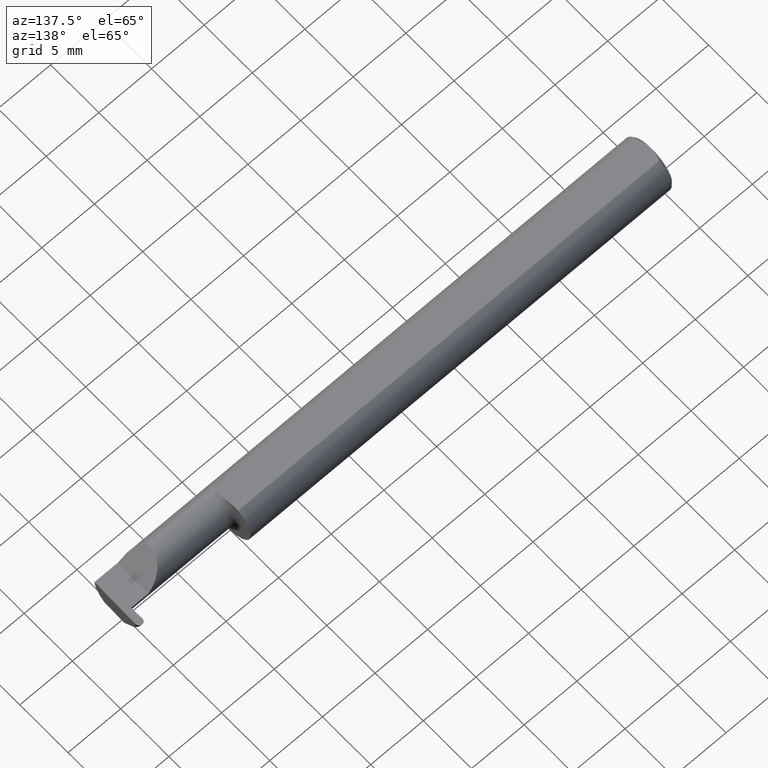
[diagram: clean part render]
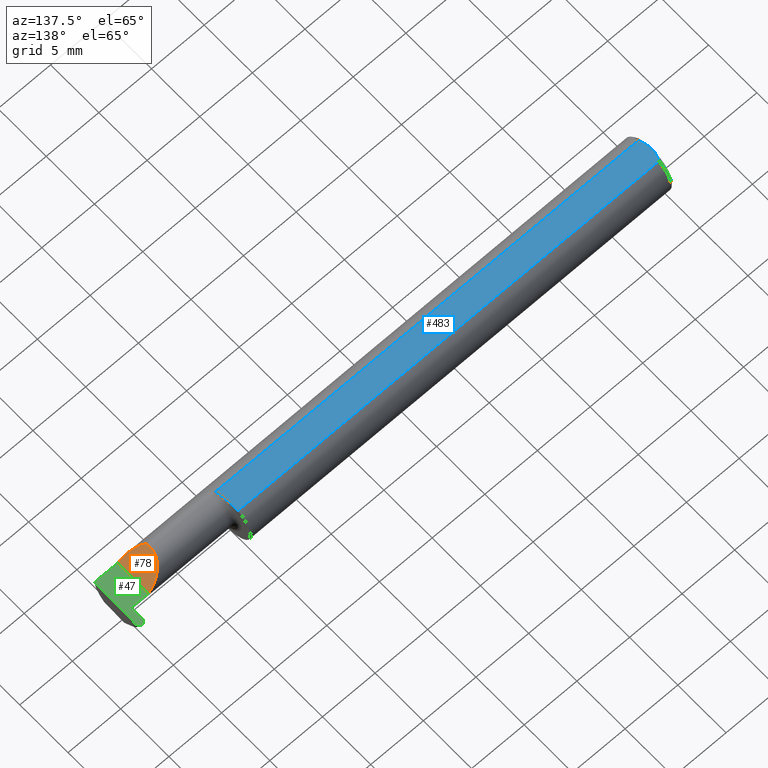
[diagram: same view with three faces highlighted in distinct colors, each labeled with its STEP entity id]
A machine part, auxiliary view with three faces highlighted in distinct colors.
Their STEP definitions:

[orange] entity #78 — the highlighted planar face has unit normal (-0.7071, 0, -0.7071).
#32 = CARTESIAN_POINT ( 'NONE',  ( 1.854690286057536941, -0.08092595952420821026, 0.05530971394246249340 ) ) ;
#34 = CARTESIAN_POINT ( 'NONE',  ( 1.834999999999999520, -0.04781600192481531841, 0.07500000000000003886 ) ) ;
#38 = CARTESIAN_POINT ( 'NONE',  ( 1.834999999999999298, 0.001333982822017845335, 0.07500000000000003886 ) ) ;
#45 = VERTEX_POINT ( 'NONE', #190 ) ;
#69 = CARTESIAN_POINT ( 'NONE',  ( 1.910000000000000142, -0.2500000000000000555, 1.102182119232621301E-17 ) ) ;
#78 = ADVANCED_FACE ( 'NONE', ( #682 ), #83, .F. ) ;
#83 = PLANE ( 'NONE',  #625 ) ;
#111 = ORIENTED_EDGE ( 'NONE', *, *, #291, .F. ) ;
#114 = CARTESIAN_POINT ( 'NONE',  ( 1.910000000000000142, 0.03239999999999999131, 5.082284216461538453E-17 ) ) ;
#168 = CARTESIAN_POINT ( 'NONE',  ( 1.880893035518782730, -0.09359999999999997489, 0.02910696448121682239 ) ) ;
#186 = EDGE_CURVE ( 'NONE', #45, #338, #660, .T. ) ;
#187 = CARTESIAN_POINT ( 'NONE',  ( 1.910000000000000142, 0.03239999999999999131, 5.082284216461538453E-17 ) ) ;
#190 = CARTESIAN_POINT ( 'NONE',  ( 1.836620632051321200, -0.05810704225352102820, 0.07337936794867834511 ) ) ;
#220 = CARTESIAN_POINT ( 'NONE',  ( 1.834999999999999520, -0.04260000000000003367, 0.07500000000000003886 ) ) ;
#222 = ORIENTED_EDGE ( 'NONE', *, *, #487, .T. ) ;
#256 = DIRECTION ( 'NONE',  ( -0.7071067811865442421, 0.000000000000000000, -0.7071067811865509034 ) ) ;
#267 = EDGE_LOOP ( 'NONE', ( #475, #111, #222, #277 ) ) ;
#277 = ORIENTED_EDGE ( 'NONE', *, *, #368, .F. ) ;
#281 = CARTESIAN_POINT ( 'NONE',  ( 1.910000000000000142, -0.09360000000000005815, 1.102182119232621301E-17 ) ) ;
#291 = EDGE_CURVE ( 'NONE', #569, #45, #334, .T. ) ;
#318 = CARTESIAN_POINT ( 'NONE',  ( 1.910000000000000142, -0.09360000000000005815, 1.102182119232621301E-17 ) ) ;
#321 = DIRECTION ( 'NONE',  ( -0.7071067811865507924, 0.000000000000000000, 0.7071067811865441310 ) ) ;
#334 =( BOUNDED_CURVE ( )  B_SPLINE_CURVE ( 3, ( #281, #168, #32, #396 ),
 .UNSPECIFIED., .F., .F. ) 
 B_SPLINE_CURVE_WITH_KNOTS ( ( 4, 4 ),
 ( 4.712388980384689674, 5.613420356061720184 ),
 .UNSPECIFIED. ) 
 CURVE ( )  GEOMETRIC_REPRESENTATION_ITEM ( )  RATIONAL_B_SPLINE_CURVE ( ( 1.000000000000000000, 0.9334817841311873199, 0.9334817841311873199, 1.000000000000000000 ) ) 
 REPRESENTATION_ITEM ( '' )  );
#338 = VERTEX_POINT ( 'NONE', #519 ) ;
#368 = EDGE_CURVE ( 'NONE', #338, #726, #636, .T. ) ;
#394 = CARTESIAN_POINT ( 'NONE',  ( 1.835542168554753717, -0.05300374992736060081, 0.07445783144524575903 ) ) ;
#396 = CARTESIAN_POINT ( 'NONE',  ( 1.836620632051321200, -0.05810704225352102820, 0.07337936794867834511 ) ) ;
#409 = CARTESIAN_POINT ( 'NONE',  ( 1.834999999999999520, -0.04260000000000003367, 0.07500000000000003886 ) ) ;
#445 = CARTESIAN_POINT ( 'NONE',  ( 1.836620632051321200, -0.05810704225352102820, 0.07337936794867834511 ) ) ;
#475 = ORIENTED_EDGE ( 'NONE', *, *, #186, .F. ) ;
#482 = LINE ( 'NONE', #69, #690 ) ;
#487 = EDGE_CURVE ( 'NONE', #569, #726, #482, .T. ) ;
#519 = CARTESIAN_POINT ( 'NONE',  ( 1.834999999999999520, -0.04260000000000003367, 0.07500000000000003886 ) ) ;
#569 = VERTEX_POINT ( 'NONE', #318 ) ;
#625 = AXIS2_PLACEMENT_3D ( 'NONE', #678, #256, #321 ) ;
#636 =( BOUNDED_CURVE ( )  B_SPLINE_CURVE ( 3, ( #409, #38, #659, #114 ),
 .UNSPECIFIED., .F., .F. ) 
 B_SPLINE_CURVE_WITH_KNOTS ( ( 4, 4 ),
 ( 0.000000000000000000, 1.570796326794896336 ),
 .UNSPECIFIED. ) 
 CURVE ( )  GEOMETRIC_REPRESENTATION_ITEM ( )  RATIONAL_B_SPLINE_CURVE ( ( 1.000000000000000000, 0.8047378541243650485, 0.8047378541243650485, 1.000000000000000000 ) ) 
 REPRESENTATION_ITEM ( '' )  );
#659 = CARTESIAN_POINT ( 'NONE',  ( 1.866066017177981706, 0.03239999999999999131, 0.04393398282201791544 ) ) ;
#660 =( BOUNDED_CURVE ( )  B_SPLINE_CURVE ( 3, ( #445, #394, #34, #220 ),
 .UNSPECIFIED., .F., .F. ) 
 B_SPLINE_CURVE_WITH_KNOTS ( ( 4, 4 ),
 ( 6.074922494366330916, 6.283185307179586232 ),
 .UNSPECIFIED. ) 
 CURVE ( )  GEOMETRIC_REPRESENTATION_ITEM ( )  RATIONAL_B_SPLINE_CURVE ( ( 1.000000000000000000, 0.9963888149483995926, 0.9963888149483995926, 1.000000000000000000 ) ) 
 REPRESENTATION_ITEM ( '' )  );
#678 = CARTESIAN_POINT ( 'NONE',  ( 1.910000000000000142, -0.2500000000000000555, 1.102182119232621301E-17 ) ) ;
#682 = FACE_OUTER_BOUND ( 'NONE', #267, .T. ) ;
#690 = VECTOR ( 'NONE', #803, 39.37007874015748143 ) ;
#726 = VERTEX_POINT ( 'NONE', #187 ) ;
#803 = DIRECTION ( 'NONE',  ( -0.000000000000000000, 1.000000000000000000, -0.000000000000000000 ) ) ;

[blue] entity #483 — the highlighted planar face has unit normal (0, 0, 1).
#33 = VECTOR ( 'NONE', #232, 39.37007874015748143 ) ;
#82 = B_SPLINE_CURVE_WITH_KNOTS ( 'NONE', 3,
 ( #109, #274, #385, #225, #166, #344 ),
 .UNSPECIFIED., .F., .F.,
 ( 4, 2, 4 ),
 ( 0.001744210492668864416, 0.002295110172257193264, 0.002846009851845522111 ),
 .UNSPECIFIED. ) ;
#93 = CARTESIAN_POINT ( 'NONE',  ( 1.586463898467976863, -0.005727447913487319735, 0.08359999999999991049 ) ) ;
#96 = B_SPLINE_CURVE_WITH_KNOTS ( 'NONE', 3,
 ( #378, #628, #523, #93, #157, #506 ),
 .UNSPECIFIED., .F., .F.,
 ( 4, 2, 4 ),
 ( 0.009672910729349542408, 0.01035804079918431486, 0.01104317086901908732 ),
 .UNSPECIFIED. ) ;
#97 = EDGE_LOOP ( 'NONE', ( #645, #336, #188, #218, #774, #522 ) ) ;
#108 = VERTEX_POINT ( 'NONE', #263 ) ;
#109 = CARTESIAN_POINT ( 'NONE',  ( 0.000000000000000000, 0.000000000000000000, 0.08359999999999991049 ) ) ;
#118 = EDGE_CURVE ( 'NONE', #611, #540, #96, .T. ) ;
#119 = DIRECTION ( 'NONE',  ( 1.000000000000000000, 0.000000000000000000, 0.000000000000000000 ) ) ;
#157 = CARTESIAN_POINT ( 'NONE',  ( 1.585000000000000187, 0.003280657920457245337, 0.08359999999999991049 ) ) ;
#166 = CARTESIAN_POINT ( 'NONE',  ( 0.007036739039485840133, 0.03550621559607060329, 0.08359999999999991049 ) ) ;
#178 = CARTESIAN_POINT ( 'NONE',  ( 0.000000000000000000, 0.04209513035969864037, 0.08359999999999988274 ) ) ;
#188 = ORIENTED_EDGE ( 'NONE', *, *, #782, .T. ) ;
#218 = ORIENTED_EDGE ( 'NONE', *, *, #807, .T. ) ;
#225 = CARTESIAN_POINT ( 'NONE',  ( 0.004492168231814808177, 0.02859366993844194779, 0.08359999999999991049 ) ) ;
#232 = DIRECTION ( 'NONE',  ( 0.000000000000000000, 1.000000000000000000, 0.000000000000000000 ) ) ;
#242 = DIRECTION ( 'NONE',  ( 0.000000000000000000, 0.000000000000000000, 1.000000000000000000 ) ) ;
#243 = EDGE_CURVE ( 'NONE', #280, #633, #82, .T. ) ;
#263 = CARTESIAN_POINT ( 'NONE',  ( 0.01000000000000016674, -0.04209513035969864037, 0.08359999999999988274 ) ) ;
#274 = CARTESIAN_POINT ( 'NONE',  ( 2.476070721796526867E-17, 0.007317304829308955878, 0.08359999999999991049 ) ) ;
#280 = VERTEX_POINT ( 'NONE', #286 ) ;
#286 = CARTESIAN_POINT ( 'NONE',  ( 0.000000000000000000, 0.000000000000000000, 0.08359999999999991049 ) ) ;
#292 = CARTESIAN_POINT ( 'NONE',  ( 0.000000000000000000, -0.04209513035969864037, 0.08359999999999988274 ) ) ;
#293 = VERTEX_POINT ( 'NONE', #406 ) ;
#315 = PLANE ( 'NONE',  #520 ) ;
#336 = ORIENTED_EDGE ( 'NONE', *, *, #118, .T. ) ;
#344 = CARTESIAN_POINT ( 'NONE',  ( 0.01000000000000016674, 0.04209513035969864037, 0.08359999999999988274 ) ) ;
#349 = LINE ( 'NONE', #178, #593 ) ;
#354 = B_SPLINE_CURVE_WITH_KNOTS ( 'NONE', 3,
 ( #486, #416, #797, #735 ),
 .UNSPECIFIED., .F., .F.,
 ( 4, 4 ),
 ( 0.0006429768761302093617, 0.001744210492668864416 ),
 .UNSPECIFIED. ) ;
#355 = DIRECTION ( 'NONE',  ( -1.000000000000000000, -0.000000000000000000, -0.000000000000000000 ) ) ;
#378 = CARTESIAN_POINT ( 'NONE',  ( 1.591129652885479473, -0.04209513035970116612, 0.08359999999999991049 ) ) ;
#385 = CARTESIAN_POINT ( 'NONE',  ( 0.0009807498324118613890, 0.01453516766257752398, 0.08359999999999992437 ) ) ;
#406 = CARTESIAN_POINT ( 'NONE',  ( 1.584999999999999964, 0.04209513035969864037, 0.08359999999999988274 ) ) ;
#416 = CARTESIAN_POINT ( 'NONE',  ( 0.004072204388638868758, -0.02891446873729324601, 0.08359999999999991049 ) ) ;
#421 = LINE ( 'NONE', #292, #605 ) ;
#446 = CARTESIAN_POINT ( 'NONE',  ( 0.01000000000000016674, 0.04209513035969864037, 0.08359999999999988274 ) ) ;
#464 = EDGE_CURVE ( 'NONE', #108, #280, #354, .T. ) ;
#483 = ADVANCED_FACE ( 'NONE', ( #545 ), #315, .T. ) ;
#486 = CARTESIAN_POINT ( 'NONE',  ( 0.01000000000000016674, -0.04209513035969864037, 0.08359999999999988274 ) ) ;
#502 = CARTESIAN_POINT ( 'NONE',  ( 1.584999999999999964, 0.01227294415283371881, 0.08359999999999991049 ) ) ;
#506 = CARTESIAN_POINT ( 'NONE',  ( 1.584999999999999964, 0.01227294415283371881, 0.08359999999999991049 ) ) ;
#520 = AXIS2_PLACEMENT_3D ( 'NONE', #615, #242, #622 ) ;
#522 = ORIENTED_EDGE ( 'NONE', *, *, #464, .F. ) ;
#523 = CARTESIAN_POINT ( 'NONE',  ( 1.589570820222980352, -0.02392027542784321698, 0.08359999999999992437 ) ) ;
#540 = VERTEX_POINT ( 'NONE', #502 ) ;
#545 = FACE_OUTER_BOUND ( 'NONE', #97, .T. ) ;
#575 = CARTESIAN_POINT ( 'NONE',  ( 1.591129652885479473, -0.04209513035970116612, 0.08359999999999991049 ) ) ;
#593 = VECTOR ( 'NONE', #355, 39.37007874015748143 ) ;
#605 = VECTOR ( 'NONE', #119, 39.37007874015748143 ) ;
#611 = VERTEX_POINT ( 'NONE', #575 ) ;
#615 = CARTESIAN_POINT ( 'NONE',  ( 2.191425808082400728, 0.09360000000000005815, 0.08359999999999991049 ) ) ;
#622 = DIRECTION ( 'NONE',  ( 1.000000000000000000, 0.000000000000000000, -0.000000000000000000 ) ) ;
#628 = CARTESIAN_POINT ( 'NONE',  ( 1.591082007218903360, -0.03301619840524119831, 0.08359999999999991049 ) ) ;
#633 = VERTEX_POINT ( 'NONE', #446 ) ;
#645 = ORIENTED_EDGE ( 'NONE', *, *, #743, .T. ) ;
#731 = LINE ( 'NONE', #786, #33 ) ;
#735 = CARTESIAN_POINT ( 'NONE',  ( 0.000000000000000000, 0.000000000000000000, 0.08359999999999991049 ) ) ;
#743 = EDGE_CURVE ( 'NONE', #108, #611, #421, .T. ) ;
#774 = ORIENTED_EDGE ( 'NONE', *, *, #243, .F. ) ;
#782 = EDGE_CURVE ( 'NONE', #540, #293, #731, .T. ) ;
#786 = CARTESIAN_POINT ( 'NONE',  ( 1.584999999999999964, 0.09360000000000005815, 0.08359999999999991049 ) ) ;
#797 = CARTESIAN_POINT ( 'NONE',  ( 2.387527623501553705E-17, -0.01462709520273675068, 0.08359999999999991049 ) ) ;
#807 = EDGE_CURVE ( 'NONE', #293, #633, #349, .T. ) ;

[green] entity #47 — the highlighted planar face has unit normal (-0, 0, -1).
#1 = ORIENTED_EDGE ( 'NONE', *, *, #403, .T. ) ;
#2 = CARTESIAN_POINT ( 'NONE',  ( 1.979564206858069220, 0.09040000000000021629, 9.406295376684195230E-19 ) ) ;
#14 = LINE ( 'NONE', #442, #734 ) ;
#47 = ADVANCED_FACE ( 'NONE', ( #555 ), #437, .F. ) ;
#48 = VECTOR ( 'NONE', #259, 39.37007874015748143 ) ;
#49 = LINE ( 'NONE', #183, #557 ) ;
#50 = VERTEX_POINT ( 'NONE', #623 ) ;
#54 = CARTESIAN_POINT ( 'NONE',  ( 1.975260873654413052, 0.03239999999999999825, 0.000000000000000000 ) ) ;
#55 = ORIENTED_EDGE ( 'NONE', *, *, #567, .F. ) ;
#60 = CARTESIAN_POINT ( 'NONE',  ( 1.974486369625657378, 0.07677130609030106967, 0.000000000000000000 ) ) ;
#64 = EDGE_CURVE ( 'NONE', #50, #768, #312, .T. ) ;
#68 = CARTESIAN_POINT ( 'NONE',  ( 1.975260873654413052, 0.03239999999999999825, 0.000000000000000000 ) ) ;
#69 = CARTESIAN_POINT ( 'NONE',  ( 1.910000000000000142, -0.2500000000000000555, 1.102182119232621301E-17 ) ) ;
#71 = ORIENTED_EDGE ( 'NONE', *, *, #487, .F. ) ;
#126 = CARTESIAN_POINT ( 'NONE',  ( 1.999998056073120534, 0.07741385304294044756, 0.000000000000000000 ) ) ;
#131 = CARTESIAN_POINT ( 'NONE',  ( 1.987408188690569011, 0.09039999999999999425, 0.000000000000000000 ) ) ;
#133 = VECTOR ( 'NONE', #671, 39.37007874015747433 ) ;
#159 = CARTESIAN_POINT ( 'NONE',  ( 1.999986840374342822, 0.07677130609030106967, 0.000000000000000000 ) ) ;
#183 = CARTESIAN_POINT ( 'NONE',  ( 2.999519565323742037E-32, -0.09359999999999998876, 2.449293598294716768E-16 ) ) ;
#185 = CARTESIAN_POINT ( 'NONE',  ( 1.987065021309431190, 0.09039999999999999425, 0.000000000000000000 ) ) ;
#187 = CARTESIAN_POINT ( 'NONE',  ( 1.910000000000000142, 0.03239999999999999131, 5.082284216461538453E-17 ) ) ;
#207 = DIRECTION ( 'NONE',  ( 1.000000000000000000, -0.000000000000000000, -0.000000000000000000 ) ) ;
#215 = ORIENTED_EDGE ( 'NONE', *, *, #544, .F. ) ;
#237 = EDGE_LOOP ( 'NONE', ( #55, #548, #510, #384, #215, #71, #591, #424, #1 ) ) ;
#249 = CARTESIAN_POINT ( 'NONE',  ( 1.987065021309431190, 0.09039999999999999425, 0.000000000000000000 ) ) ;
#259 = DIRECTION ( 'NONE',  ( 1.000000000000000000, 7.099522513569547654E-16, -0.000000000000000000 ) ) ;
#260 = CARTESIAN_POINT ( 'NONE',  ( -3.937007874019685528E-05, 0.09039999999999999425, 0.000000000000000000 ) ) ;
#270 = VERTEX_POINT ( 'NONE', #159 ) ;
#305 = LINE ( 'NONE', #126, #133 ) ;
#312 = LINE ( 'NONE', #68, #48 ) ;
#318 = CARTESIAN_POINT ( 'NONE',  ( 1.910000000000000142, -0.09360000000000005815, 1.102182119232621301E-17 ) ) ;
#328 = VECTOR ( 'NONE', #207, 39.37007874015748143 ) ;
#364 = AXIS2_PLACEMENT_3D ( 'NONE', #744, #749, #367 ) ;
#367 = DIRECTION ( 'NONE',  ( -1.000000000000000000, 0.000000000000000000, 1.224646799147358877E-16 ) ) ;
#369 = CARTESIAN_POINT ( 'NONE',  ( 1.999986840374342822, 0.07677130609030106967, 0.000000000000000000 ) ) ;
#383 = DIRECTION ( 'NONE',  ( 1.000000000000000000, 0.000000000000000000, 0.000000000000000000 ) ) ;
#384 = ORIENTED_EDGE ( 'NONE', *, *, #64, .F. ) ;
#403 = EDGE_CURVE ( 'NONE', #270, #763, #725, .T. ) ;
#408 = VERTEX_POINT ( 'NONE', #60 ) ;
#411 = VERTEX_POINT ( 'NONE', #249 ) ;
#413 =( BOUNDED_CURVE ( )  B_SPLINE_CURVE ( 3, ( #185, #2, #429, #680 ),
 .UNSPECIFIED., .F., .F. ) 
 B_SPLINE_CURVE_WITH_KNOTS ( ( 4, 4 ),
 ( 6.177091236413978947, 7.752341154236730425 ),
 .UNSPECIFIED. ) 
 CURVE ( )  GEOMETRIC_REPRESENTATION_ITEM ( )  RATIONAL_B_SPLINE_CURVE ( ( 1.000000000000000000, 0.8036869647627007396, 0.8036869647627007396, 1.000000000000000000 ) ) 
 REPRESENTATION_ITEM ( '' )  );
#424 = ORIENTED_EDGE ( 'NONE', *, *, #474, .F. ) ;
#425 = CARTESIAN_POINT ( 'NONE',  ( 2.000126064110226753, 0.08474742857719365363, -1.579535239246384574E-18 ) ) ;
#429 = CARTESIAN_POINT ( 'NONE',  ( 1.974347145889773225, 0.08474742857719380629, 1.579535239246386693E-18 ) ) ;
#437 = PLANE ( 'NONE',  #364 ) ;
#442 = CARTESIAN_POINT ( 'NONE',  ( 1.584999999999999964, 0.03239999999999999131, 5.082284216461538453E-17 ) ) ;
#471 = LINE ( 'NONE', #724, #655 ) ;
#474 = EDGE_CURVE ( 'NONE', #270, #585, #305, .T. ) ;
#482 = LINE ( 'NONE', #69, #690 ) ;
#487 = EDGE_CURVE ( 'NONE', #569, #726, #482, .T. ) ;
#496 = CARTESIAN_POINT ( 'NONE',  ( 1.997012998164632958, -0.09360000000000001652, 0.000000000000000000 ) ) ;
#498 = LINE ( 'NONE', #260, #328 ) ;
#503 = EDGE_CURVE ( 'NONE', #411, #408, #413, .T. ) ;
#510 = ORIENTED_EDGE ( 'NONE', *, *, #790, .F. ) ;
#542 = DIRECTION ( 'NONE',  ( -1.000000000000000000, -0.000000000000000000, -0.000000000000000000 ) ) ;
#544 = EDGE_CURVE ( 'NONE', #726, #50, #14, .T. ) ;
#548 = ORIENTED_EDGE ( 'NONE', *, *, #503, .T. ) ;
#549 = CARTESIAN_POINT ( 'NONE',  ( 1.987408188690569011, 0.09039999999999999425, 0.000000000000000000 ) ) ;
#555 = FACE_OUTER_BOUND ( 'NONE', #237, .T. ) ;
#557 = VECTOR ( 'NONE', #542, 39.37007874015748143 ) ;
#567 = EDGE_CURVE ( 'NONE', #411, #763, #498, .T. ) ;
#569 = VERTEX_POINT ( 'NONE', #318 ) ;
#585 = VERTEX_POINT ( 'NONE', #496 ) ;
#591 = ORIENTED_EDGE ( 'NONE', *, *, #689, .F. ) ;
#608 = CARTESIAN_POINT ( 'NONE',  ( 1.994909003141931425, 0.09040000000000000813, -9.406295376684357008E-19 ) ) ;
#623 = CARTESIAN_POINT ( 'NONE',  ( 1.969248479888576320, 0.03239999999999999825, 0.000000000000000000 ) ) ;
#655 = VECTOR ( 'NONE', #661, 39.37007874015747433 ) ;
#661 = DIRECTION ( 'NONE',  ( -0.01745240643727524049, 0.9998476951563914916, -0.000000000000000000 ) ) ;
#671 = DIRECTION ( 'NONE',  ( -0.01745240643727442170, -0.9998476951563914916, 0.000000000000000000 ) ) ;
#680 = CARTESIAN_POINT ( 'NONE',  ( 1.974486369625657378, 0.07677130609030106967, 0.000000000000000000 ) ) ;
#689 = EDGE_CURVE ( 'NONE', #585, #569, #49, .T. ) ;
#690 = VECTOR ( 'NONE', #803, 39.37007874015748143 ) ;
#724 = CARTESIAN_POINT ( 'NONE',  ( 1.974475153926879667, 0.07741385304294044756, 0.000000000000000000 ) ) ;
#725 =( BOUNDED_CURVE ( )  B_SPLINE_CURVE ( 3, ( #369, #425, #608, #549 ),
 .UNSPECIFIED., .F., .F. ) 
 B_SPLINE_CURVE_WITH_KNOTS ( ( 4, 4 ),
 ( 1.672436806532649367, 3.247686724355377752 ),
 .UNSPECIFIED. ) 
 CURVE ( )  GEOMETRIC_REPRESENTATION_ITEM ( )  RATIONAL_B_SPLINE_CURVE ( ( 1.000000000000000000, 0.8036869647627060687, 0.8036869647627060687, 1.000000000000000000 ) ) 
 REPRESENTATION_ITEM ( '' )  );
#726 = VERTEX_POINT ( 'NONE', #187 ) ;
#734 = VECTOR ( 'NONE', #383, 39.37007874015748143 ) ;
#744 = CARTESIAN_POINT ( 'NONE',  ( 2.000000000000000000, -0.2500000000000000555, 0.000000000000000000 ) ) ;
#749 = DIRECTION ( 'NONE',  ( -1.224646799147358877E-16, 0.000000000000000000, -1.000000000000000000 ) ) ;
#763 = VERTEX_POINT ( 'NONE', #131 ) ;
#768 = VERTEX_POINT ( 'NONE', #54 ) ;
#790 = EDGE_CURVE ( 'NONE', #768, #408, #471, .T. ) ;
#803 = DIRECTION ( 'NONE',  ( -0.000000000000000000, 1.000000000000000000, -0.000000000000000000 ) ) ;